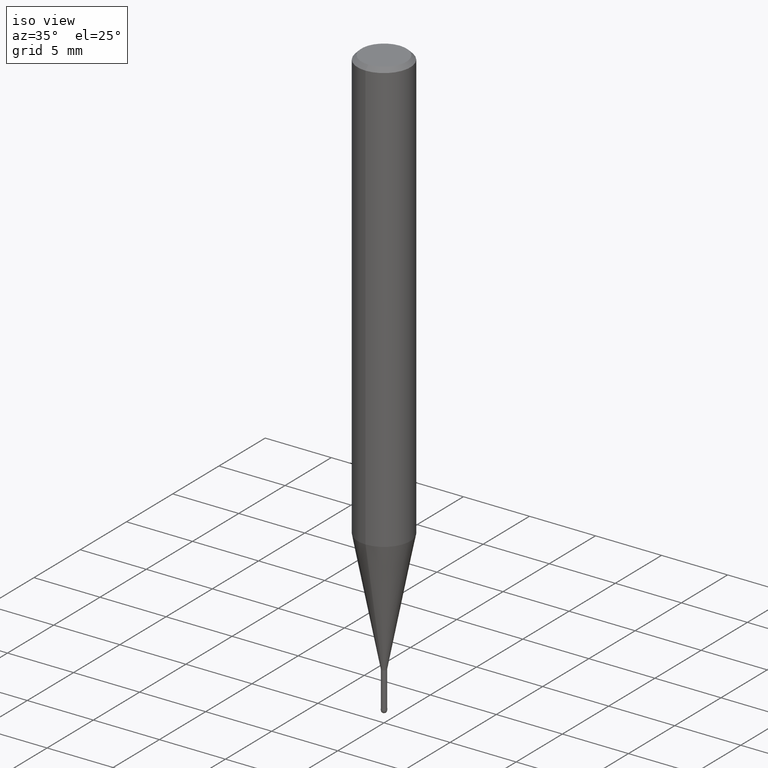
[diagram: clean part render]
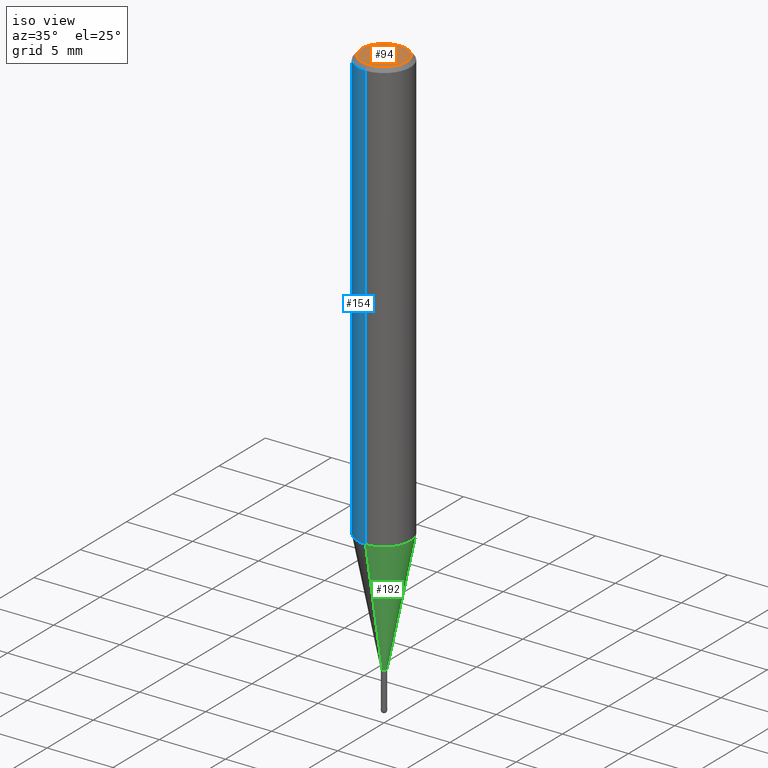
[diagram: same view with three faces highlighted in distinct colors, each labeled with its STEP entity id]
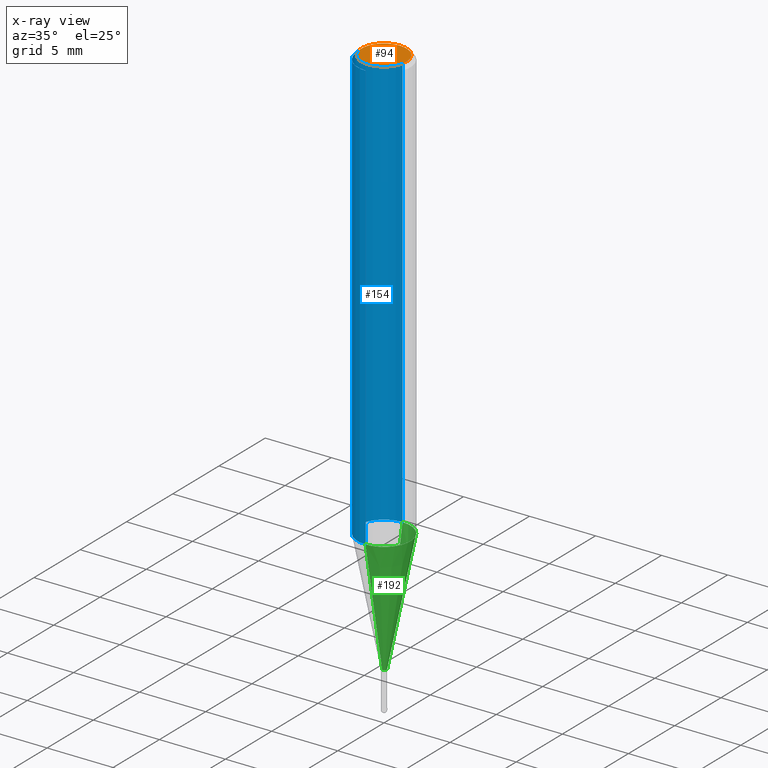
[diagram: x-ray of the same camera — body ghosted, the three highlighted faces saturated]
A machine part, iso view with three faces highlighted in distinct colors.
The next image is the same camera in x-ray (body ghosted, the three faces saturated) — at least one of them is partly hidden behind the body in this view.
Their STEP definitions:

[orange] entity #94 — the highlighted planar face has unit normal (-0, 0, 1).
#94=ADVANCED_FACE('',(#235),#236,.T.);
#106=VERTEX_POINT('',#249);
#112=VERTEX_POINT('',#256);
#190=EDGE_CURVE('',#106,#112,#346,.T.);
#206=EDGE_CURVE('',#112,#106,#363,.T.);
#235=FACE_OUTER_BOUND('',#385,.T.);
#236=PLANE('',#386);
#249=CARTESIAN_POINT('',(2.08183080149804E-016,-1.7,0.0));
#256=CARTESIAN_POINT('',(0.0,1.7,0.0));
#346=CIRCLE('',#522,1.7);
#363=CIRCLE('',#545,1.7);
#385=EDGE_LOOP('',(#560,#561));
#386=AXIS2_PLACEMENT_3D('',#562,#563,#564);
#522=AXIS2_PLACEMENT_3D('',#699,#700,#701);
#545=AXIS2_PLACEMENT_3D('',#720,#721,#722);
#560=ORIENTED_EDGE('',*,*,#206,.F.);
#561=ORIENTED_EDGE('',*,*,#190,.F.);
#562=CARTESIAN_POINT('',(0.0,0.85,0.0));
#563=DIRECTION('',(-0.0,0.0,1.0));
#564=DIRECTION('',(0.0,-1.0,0.0));
#699=CARTESIAN_POINT('',(0.0,0.0,0.0));
#700=DIRECTION('',(0.0,0.0,-1.0));
#701=DIRECTION('',(0.0,1.0,0.0));
#720=CARTESIAN_POINT('',(0.0,0.0,0.0));
#721=DIRECTION('',(0.0,0.0,-1.0));
#722=DIRECTION('',(0.0,1.0,0.0));

[blue] entity #154 — the highlighted cylindrical surface (edge-blend (fillet) strip) has radius 2 mm, axis along (-0, -0, 1).
#136=VERTEX_POINT('',#281);
#142=VERTEX_POINT('',#288);
#154=ADVANCED_FACE('',(#302),#303,.T.);
#158=VERTEX_POINT('',#307);
#164=VERTEX_POINT('',#313);
#182=EDGE_CURVE('',#136,#158,#335,.T.);
#198=EDGE_CURVE('',#142,#164,#355,.T.);
#200=EDGE_CURVE('',#136,#164,#357,.T.);
#210=EDGE_CURVE('',#158,#142,#367,.T.);
#281=CARTESIAN_POINT('',(2.44921270764475E-016,-2.0,-32.714));
#288=CARTESIAN_POINT('',(0.0,2.0,-0.299999999999997));
#302=FACE_OUTER_BOUND('',#469,.T.);
#303=CYLINDRICAL_SURFACE('',#470,2.0);
#307=CARTESIAN_POINT('',(2.44921270764475E-016,-2.0,-0.299999999999997));
#313=CARTESIAN_POINT('',(0.0,2.0,-32.714));
#335=LINE('',#510,#511);
#355=LINE('',#532,#533);
#357=CIRCLE('',#536,2.0);
#367=CIRCLE('',#551,2.0);
#469=EDGE_LOOP('',(#635,#636,#637,#638));
#470=AXIS2_PLACEMENT_3D('',#639,#640,#641);
#510=CARTESIAN_POINT('',(2.44921270764475E-016,-2.0,-16.507));
#511=VECTOR('',#681,1.0);
#532=CARTESIAN_POINT('',(-2.44921270764475E-016,2.0,-16.507));
#533=VECTOR('',#710,1.0);
#536=AXIS2_PLACEMENT_3D('',#711,#712,#713);
#551=AXIS2_PLACEMENT_3D('',#726,#727,#728);
#635=ORIENTED_EDGE('',*,*,#198,.T.);
#636=ORIENTED_EDGE('',*,*,#200,.F.);
#637=ORIENTED_EDGE('',*,*,#182,.T.);
#638=ORIENTED_EDGE('',*,*,#210,.T.);
#639=CARTESIAN_POINT('',(0.0,0.0,-16.507));
#640=DIRECTION('',(-0.0,-0.0,1.0));
#641=DIRECTION('',(0.0,1.0,0.0));
#681=DIRECTION('',(-0.0,-0.0,1.0));
#710=DIRECTION('',(0.0,0.0,-1.0));
#711=CARTESIAN_POINT('',(0.0,0.0,-32.714));
#712=DIRECTION('',(0.0,0.0,-1.0));
#713=DIRECTION('',(0.0,1.0,0.0));
#726=CARTESIAN_POINT('',(0.0,0.0,-0.299999999999997));
#727=DIRECTION('',(0.0,0.0,-1.0));
#728=DIRECTION('',(0.0,1.0,0.0));

[green] entity #192 — the highlighted conical surface has half-angle 11 deg.
#100=VERTEX_POINT('',#242);
#104=VERTEX_POINT('',#247);
#130=VERTEX_POINT('',#274);
#138=EDGE_CURVE('',#180,#100,#283,.T.);
#156=EDGE_CURVE('',#130,#180,#305,.T.);
#160=EDGE_CURVE('',#100,#104,#309,.T.);
#180=VERTEX_POINT('',#333);
#192=ADVANCED_FACE('',(#348),#349,.T.);
#208=EDGE_CURVE('',#130,#104,#365,.T.);
#242=CARTESIAN_POINT('',(2.38737008677672E-017,-0.19495,-42.0));
#247=CARTESIAN_POINT('',(2.44915147732706E-016,-1.99995,-32.714));
#274=CARTESIAN_POINT('',(0.0,1.99995,-32.714));
#283=CIRCLE('',#446,0.19495);
#305=LINE('',#473,#474);
#309=LINE('',#479,#480);
#333=CARTESIAN_POINT('',(0.0,0.19495,-42.0));
#348=FACE_OUTER_BOUND('',#524,.T.);
#349=CONICAL_SURFACE('',#525,1.09745,0.191984604054908);
#365=CIRCLE('',#548,1.99995);
#446=AXIS2_PLACEMENT_3D('',#602,#603,#604);
#473=CARTESIAN_POINT('',(-1.34394424300237E-016,1.09745,-37.357));
#474=VECTOR('',#642,1.0);
#479=CARTESIAN_POINT('',(1.34394424300237E-016,-1.09745,-37.357));
#480=VECTOR('',#643,1.0);
#524=EDGE_LOOP('',(#703,#704,#705,#706));
#525=AXIS2_PLACEMENT_3D('',#707,#708,#709);
#548=AXIS2_PLACEMENT_3D('',#723,#724,#725);
#602=CARTESIAN_POINT('',(0.0,0.0,-42.0));
#603=DIRECTION('',(0.0,0.0,-1.0));
#604=DIRECTION('',(0.0,1.0,0.0));
#642=DIRECTION('',(2.33663968307108E-017,-0.190807411359389,-0.981627491348082));
#643=DIRECTION('',(2.33663968307108E-017,-0.190807411359389,0.981627491348082));
#703=ORIENTED_EDGE('',*,*,#156,.F.);
#704=ORIENTED_EDGE('',*,*,#208,.T.);
#705=ORIENTED_EDGE('',*,*,#160,.F.);
#706=ORIENTED_EDGE('',*,*,#138,.F.);
#707=CARTESIAN_POINT('',(0.0,0.0,-37.357));
#708=DIRECTION('',(-0.0,-0.0,1.0));
#709=DIRECTION('',(0.0,1.0,0.0));
#723=CARTESIAN_POINT('',(0.0,0.0,-32.714));
#724=DIRECTION('',(0.0,0.0,-1.0));
#725=DIRECTION('',(0.0,1.0,0.0));